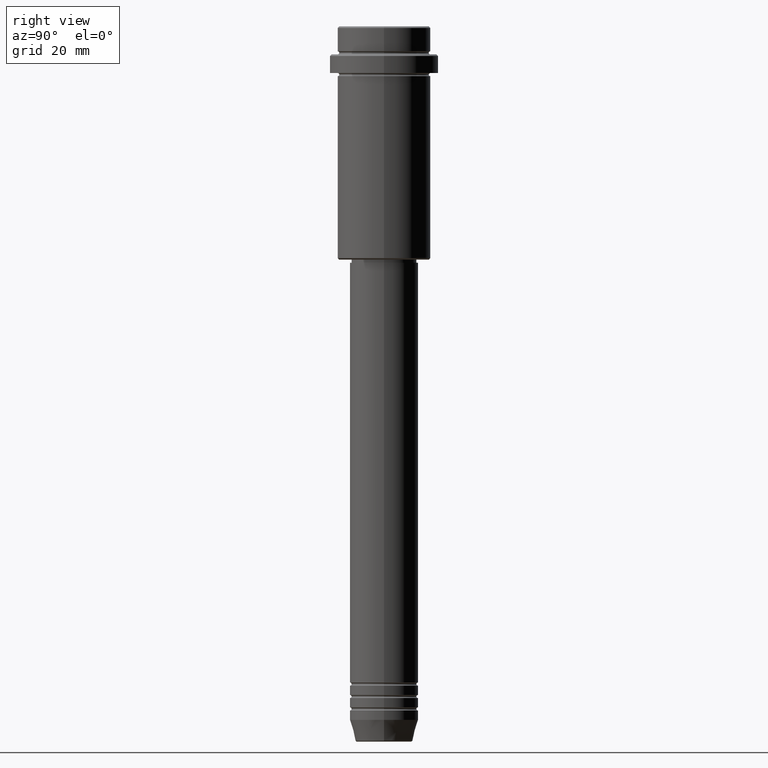
[diagram: clean part render]
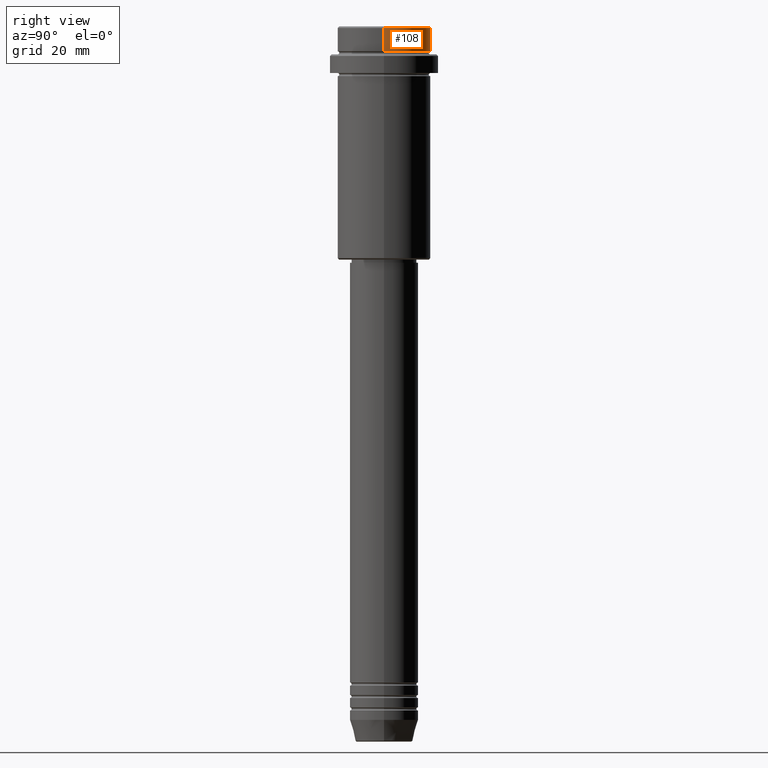
[diagram: same view with one face highlighted and labeled with its STEP entity id]
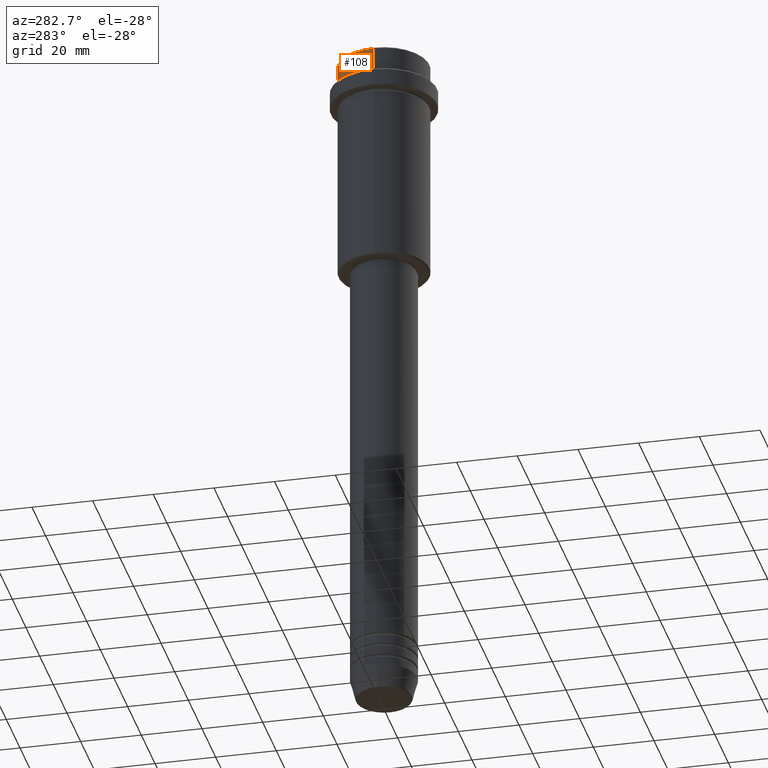
[diagram: same view with one face highlighted and labeled with its STEP entity id]
A machine part, right view. The second image highlights one B-rep face of the part: STEP entity #108.
A second angle (auxiliary view) of the same face is appended — the face is thin or edge-on in the first view.
In plain terms, the highlighted cylindrical surface (partial cylindrical patch) has radius 15 mm, axis along (-0, -0, 1).
Its self-contained STEP definition (entity closure, byte-faithful):
#81 = DIRECTION ( 'NONE',  ( 1.000000000000000000, 0.000000000000000000, 0.000000000000000000 ) ) ;
#108 = ADVANCED_FACE ( 'NONE', ( #1196 ), #325, .T. ) ;
#127 = CARTESIAN_POINT ( 'NONE',  ( 0.000000000000000000, 0.000000000000000000, -7.999999999999998224 ) ) ;
#189 = EDGE_CURVE ( 'NONE', #605, #1134, #1275, .T. ) ;
#215 = CARTESIAN_POINT ( 'NONE',  ( 0.000000000000000000, 0.000000000000000000, 0.000000000000000000 ) ) ;
#253 = VERTEX_POINT ( 'NONE', #545 ) ;
#267 = DIRECTION ( 'NONE',  ( -0.000000000000000000, -0.000000000000000000, 1.000000000000000000 ) ) ;
#325 = CYLINDRICAL_SURFACE ( 'NONE', #1391, 15.00000000000000000 ) ;
#351 = DIRECTION ( 'NONE',  ( 1.000000000000000000, 0.000000000000000000, 0.000000000000000000 ) ) ;
#354 = CARTESIAN_POINT ( 'NONE',  ( 0.000000000000000000, 0.000000000000000000, -0.4999999999999831246 ) ) ;
#370 = AXIS2_PLACEMENT_3D ( 'NONE', #127, #590, #927 ) ;
#392 = ORIENTED_EDGE ( 'NONE', *, *, #1090, .T. ) ;
#449 = EDGE_CURVE ( 'NONE', #253, #1134, #999, .T. ) ;
#466 = DIRECTION ( 'NONE',  ( -0.000000000000000000, -0.000000000000000000, 1.000000000000000000 ) ) ;
#483 = EDGE_LOOP ( 'NONE', ( #1189, #392, #538, #819 ) ) ;
#498 = VECTOR ( 'NONE', #267, 1000.000000000000000 ) ;
#526 = CARTESIAN_POINT ( 'NONE',  ( 15.00000000000000000, 0.000000000000000000, 0.000000000000000000 ) ) ;
#538 = ORIENTED_EDGE ( 'NONE', *, *, #449, .T. ) ;
#545 = CARTESIAN_POINT ( 'NONE',  ( -15.00000000000000000, 1.836970198721029589E-15, -0.4999999999999831246 ) ) ;
#590 = DIRECTION ( 'NONE',  ( -0.000000000000000000, -0.000000000000000000, 1.000000000000000000 ) ) ;
#596 = LINE ( 'NONE', #1244, #498 ) ;
#605 = VERTEX_POINT ( 'NONE', #754 ) ;
#754 = CARTESIAN_POINT ( 'NONE',  ( 15.00000000000000000, 0.000000000000000000, -7.999999999999998224 ) ) ;
#819 = ORIENTED_EDGE ( 'NONE', *, *, #189, .F. ) ;
#927 = DIRECTION ( 'NONE',  ( 1.000000000000000000, 0.000000000000000000, 0.000000000000000000 ) ) ;
#951 = CARTESIAN_POINT ( 'NONE',  ( -15.00000000000000000, 1.836970198721029589E-15, -7.999999999999998224 ) ) ;
#998 = VECTOR ( 'NONE', #1185, 1000.000000000000000 ) ;
#999 = CIRCLE ( 'NONE', #1019, 15.00000000000000000 ) ;
#1019 = AXIS2_PLACEMENT_3D ( 'NONE', #354, #1232, #81 ) ;
#1021 = CIRCLE ( 'NONE', #370, 15.00000000000000000 ) ;
#1090 = EDGE_CURVE ( 'NONE', #1221, #253, #596, .T. ) ;
#1125 = EDGE_CURVE ( 'NONE', #605, #1221, #1021, .T. ) ;
#1134 = VERTEX_POINT ( 'NONE', #1269 ) ;
#1185 = DIRECTION ( 'NONE',  ( -0.000000000000000000, -0.000000000000000000, 1.000000000000000000 ) ) ;
#1189 = ORIENTED_EDGE ( 'NONE', *, *, #1125, .T. ) ;
#1196 = FACE_OUTER_BOUND ( 'NONE', #483, .T. ) ;
#1221 = VERTEX_POINT ( 'NONE', #951 ) ;
#1232 = DIRECTION ( 'NONE',  ( 0.000000000000000000, 0.000000000000000000, -1.000000000000000000 ) ) ;
#1244 = CARTESIAN_POINT ( 'NONE',  ( -15.00000000000000000, 1.836970198721029589E-15, 0.000000000000000000 ) ) ;
#1269 = CARTESIAN_POINT ( 'NONE',  ( 15.00000000000000000, 0.000000000000000000, -0.4999999999999831246 ) ) ;
#1275 = LINE ( 'NONE', #526, #998 ) ;
#1391 = AXIS2_PLACEMENT_3D ( 'NONE', #215, #466, #351 ) ;